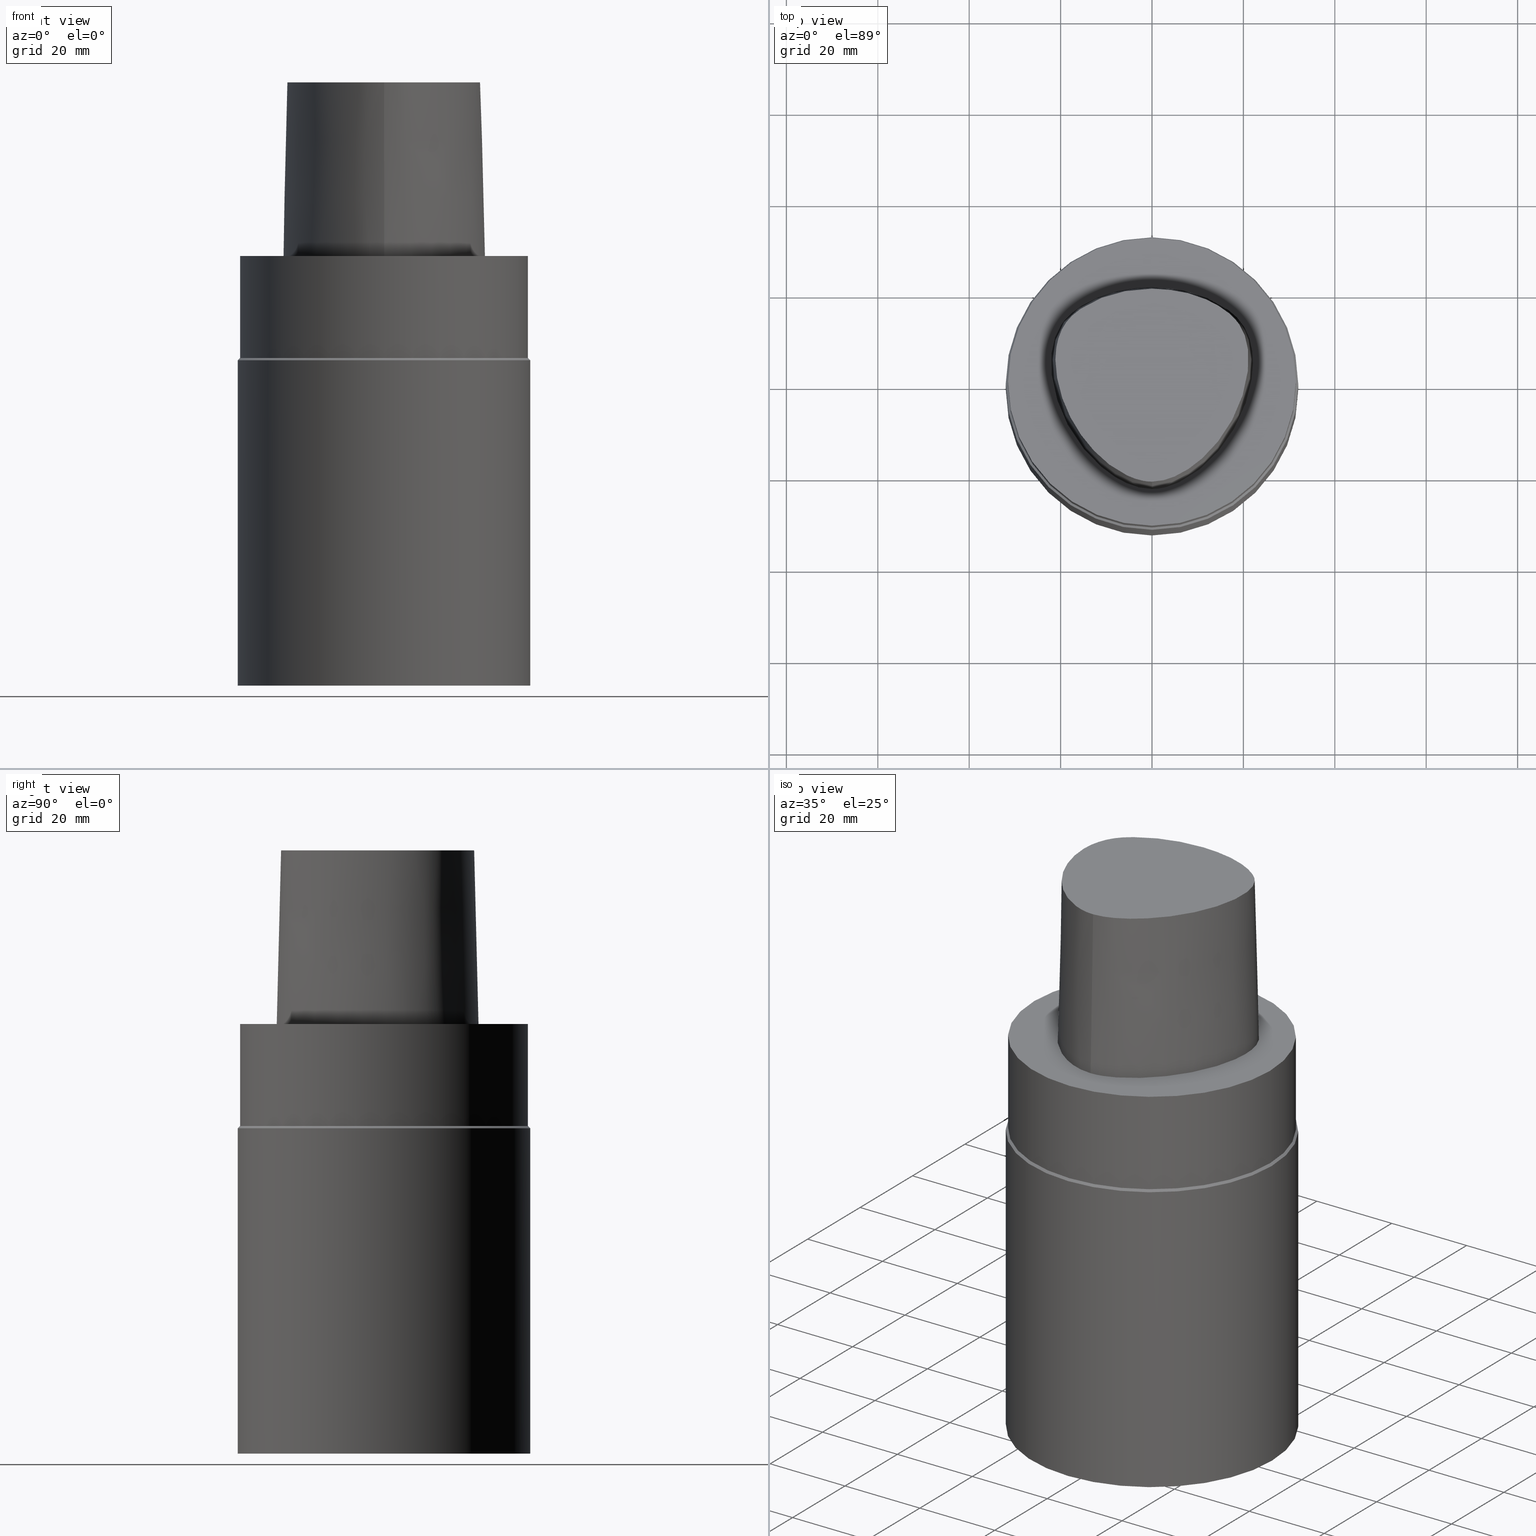
[diagram: canonical four-view strip — front | top / right | iso, engineering-drawing reading convention]
A machine part, canonical four-view strip (front | top / right | iso — engineering-drawing reading convention). The complete STEP part file that produces these views, byte-faithful:
ISO-10303-21;
HEADER;
FILE_DESCRIPTION((''),'1');
FILE_NAME('//Big_tech03/bigt/Translate/11_3D_Field/02_Step_Field/92_Capto_\X2\56DE8EE27528FF8EFF99FF80FF9E\X0\/CK/C6-CKB6-94.stp','2012-12-05T01:50:48',(''),(''),'Spatial Interop R18','Kubotek KeyCreator V8.5.1 (14335)',' ');
FILE_SCHEMA(('CONFIG_CONTROL_DESIGN'));
ENDSEC;
DATA;
#1=DESIGN_CONTEXT('',#27,'design');
#2=APPLICATION_PROTOCOL_DEFINITION('INTERNATIONAL STANDARD','config_control_design',1994,#27);
#3=PRODUCT_CATEGORY_RELATIONSHIP('NONE','NONE',#28,#29);
#4=DATE_AND_TIME(#30,#31);
#5=DATE_TIME_ROLE('creation_date');
#6=DATE_TIME_ROLE('classification_date');
#7=PERSON_AND_ORGANIZATION_ROLE('creator');
#8=PERSON_AND_ORGANIZATION_ROLE('design_supplier');
#9=PERSON_AND_ORGANIZATION_ROLE('classification_officer');
#10=PERSON_AND_ORGANIZATION_ROLE('design_owner');
#11=APPROVAL_PERSON_ORGANIZATION(#32,#33,#34);
#12=APPROVAL_DATE_TIME(#4,#33);
#13=CC_DESIGN_APPROVAL(#33,(#35,#36,#37));
#14=CC_DESIGN_DATE_AND_TIME_ASSIGNMENT(#4,#5,(#37));
#15=CC_DESIGN_DATE_AND_TIME_ASSIGNMENT(#4,#6,(#35));
#16=CC_DESIGN_PERSON_AND_ORGANIZATION_ASSIGNMENT(#32,#10,(#38));
#17=CC_DESIGN_PERSON_AND_ORGANIZATION_ASSIGNMENT(#32,#7,(#37));
#18=CC_DESIGN_PERSON_AND_ORGANIZATION_ASSIGNMENT(#32,#7,(#36));
#19=CC_DESIGN_PERSON_AND_ORGANIZATION_ASSIGNMENT(#32,#8,(#36));
#20=CC_DESIGN_SECURITY_CLASSIFICATION(#35,(#36));
#21=CC_DESIGN_PERSON_AND_ORGANIZATION_ASSIGNMENT(#32,#9,(#35));
#22=SHAPE_DEFINITION_REPRESENTATION(#39,#40);
#23= (GEOMETRIC_REPRESENTATION_CONTEXT(3)GLOBAL_UNCERTAINTY_ASSIGNED_CONTEXT((#43))GLOBAL_UNIT_ASSIGNED_CONTEXT((#45,#46,#47))REPRESENTATION_CONTEXT('NONE','WORKSPACE'));
#27=APPLICATION_CONTEXT('CONFIGURATION CONTROLLED 3D DESIGNS OF MECHANICAL PARTS AND ASSEMBLIES');
#28=PRODUCT_CATEGORY('part','NONE');
#29=PRODUCT_RELATED_PRODUCT_CATEGORY('detail',' ',(#38));
#30=CALENDAR_DATE(2012,5,11);
#31=LOCAL_TIME(10,50,48.0,#49);
#32=PERSON_AND_ORGANIZATION(#50,#51);
#33=APPROVAL(#52,'SOLID MODEL');
#34=APPROVAL_ROLE('APPROVED');
#35=SECURITY_CLASSIFICATION('','',#53);
#36=PRODUCT_DEFINITION_FORMATION_WITH_SPECIFIED_SOURCE(' ','NONE',#38,.NOT_KNOWN.);
#37=PRODUCT_DEFINITION('NONE','NONE',#36,#1);
#38=PRODUCT('1','1','PART-1-DESC',(#54));
#39=PRODUCT_DEFINITION_SHAPE('NONE','NONE',#37);
#40=ADVANCED_BREP_SHAPE_REPRESENTATION('1',(#55,#56),#23);
#43=UNCERTAINTY_MEASURE_WITH_UNIT(LENGTH_MEASURE(1.0E-006),#45,'','');
#45= (CONVERSION_BASED_UNIT('MILLIMETRE',#59)LENGTH_UNIT()NAMED_UNIT(#62));
#46= (NAMED_UNIT(#64)PLANE_ANGLE_UNIT()SI_UNIT($,.RADIAN.));
#47= (NAMED_UNIT(#64)SOLID_ANGLE_UNIT()SI_UNIT($,.STERADIAN.));
#49=COORDINATED_UNIVERSAL_TIME_OFFSET(9,0,.AHEAD.);
#50=PERSON('','UNSPECIFIED',$,$,$,$);
#51=ORGANIZATION('UNSPECIFIED','UNSPECIFIED','UNSPECIFIED');
#52=APPROVAL_STATUS('approved');
#53=SECURITY_CLASSIFICATION_LEVEL('unclassified');
#54=MECHANICAL_CONTEXT('',#27,'mechanical');
#55=MANIFOLD_SOLID_BREP('1',#70);
#56=AXIS2_PLACEMENT_3D('',#71,#72,#73);
#59=LENGTH_MEASURE_WITH_UNIT(LENGTH_MEASURE(1.0),#74);
#62=DIMENSIONAL_EXPONENTS(1.0,0.0,0.0,0.0,0.0,0.0,0.0);
#64=DIMENSIONAL_EXPONENTS(0.0,0.0,0.0,0.0,0.0,0.0,0.0);
#70=CLOSED_SHELL('',(#75,#76,#77,#78,#79,#80,#81,#82,#83));
#71=CARTESIAN_POINT('',(0.0,0.0,0.0));
#72=DIRECTION('',(0.0,0.0,1.0));
#73=DIRECTION('',(1.0,0.0,0.0));
#74= (NAMED_UNIT(#62)LENGTH_UNIT()SI_UNIT(.MILLI.,.METRE.));
#75=ADVANCED_FACE('',(#85),#86,.T.);
#76=ADVANCED_FACE('',(#87),#88,.T.);
#77=ADVANCED_FACE('',(#89),#90,.T.);
#78=ADVANCED_FACE('',(#91),#92,.T.);
#79=ADVANCED_FACE('',(#93,#94),#95,.T.);
#80=ADVANCED_FACE('',(#96,#97),#98,.T.);
#81=ADVANCED_FACE('',(#99),#100,.T.);
#82=ADVANCED_FACE('',(#101,#102),#103,.T.);
#83=ADVANCED_FACE('',(#104,#105),#106,.T.);
#85=FACE_OUTER_BOUND('',#107,.T.);
#86=B_SPLINE_SURFACE_WITH_KNOTS('',3,3,((#108,#109,#110,#111),(#112,#113,#114,#115),(#116,#117,#118,#119),(#120,#121,#122,#123),(#124,#125,#126,#127),(#128,#129,#130,#131),(#132,#133,#134,#135),(#136,#137,#138,#139),(#140,#141,#142,#143),(#144,#145,#146,#147),(#148,#149,#150,#151),(#152,#153,#154,#155),(#156,#157,#158,#159),(#160,#161,#162,#163),(#164,#165,#166,#167),(#168,#169,#170,#171),(#172,#173,#174,#175)),.UNSPECIFIED.,.F.,.F.,.F.,(4,1,1,1,1,1,1,1,1,1,1,1,1,1,4),(4,4),(-13.2302678617486,-12.816821991069,-12.4033761203893,-11.9899302497097,-11.57648437903,-11.1630385083504,-10.9563155730106,-10.7495926376707,-10.3361467669911,-9.92270089631145,-9.09580915495216,-8.26891741359287,-7.44202567223358,-7.02857980155394,-6.6151339308743),(-3.8,0.0),.UNSPECIFIED.);
#87=FACE_OUTER_BOUND('',#176,.T.);
#88=B_SPLINE_SURFACE_WITH_KNOTS('',3,3,((#177,#178,#179,#180),(#181,#182,#183,#184),(#185,#186,#187,#188),(#189,#190,#191,#192),(#193,#194,#195,#196),(#197,#198,#199,#200),(#201,#202,#203,#204),(#205,#206,#207,#208),(#209,#210,#211,#212),(#213,#214,#215,#216),(#217,#218,#219,#220),(#221,#222,#223,#224),(#225,#226,#227,#228),(#229,#230,#231,#232),(#233,#234,#235,#236),(#237,#238,#239,#240),(#241,#242,#243,#244),(#245,#246,#247,#248)),.UNSPECIFIED.,.F.,.F.,.F.,(4,1,1,1,1,1,1,1,1,2,1,1,1,1,4),(4,4),(-6.6151339308743,-6.20168806019465,-5.78824218951501,-5.37479631883537,-4.96135044815572,-4.13445870679644,-3.30756696543715,-2.89412109475751,-2.48067522407786,-2.06722935339822,-1.65378348271857,-1.24033761203893,-0.826891741359287,-0.413445870679644,0.0),(-3.8,0.0),.UNSPECIFIED.);
#89=FACE_OUTER_BOUND('',#249,.T.);
#90=CONICAL_SURFACE('',#250,1.0,0.0249931148600041);
#91=FACE_OUTER_BOUND('',#251,.T.);
#92=PLANE('',#252);
#93=FACE_BOUND('',#253,.T.);
#94=FACE_BOUND('',#254,.T.);
#95=CONICAL_SURFACE('',#255,31.74625,0.785398163397448);
#96=FACE_BOUND('',#256,.T.);
#97=FACE_BOUND('',#257,.T.);
#98=CYLINDRICAL_SURFACE('',#258,32.0);
#99=FACE_OUTER_BOUND('',#259,.T.);
#100=PLANE('',#260);
#101=FACE_BOUND('',#261,.T.);
#102=FACE_OUTER_BOUND('',#262,.T.);
#103=PLANE('',#263);
#104=FACE_BOUND('',#264,.T.);
#105=FACE_BOUND('',#265,.T.);
#106=CYLINDRICAL_SURFACE('',#266,31.4925);
#107=EDGE_LOOP('',(#267,#268,#269,#270));
#108=CARTESIAN_POINT('',(-0.001218367817519,19.7276822012873,38.0));
#109=CARTESIAN_POINT('',(0.014082083248157,20.0439577123075,25.3333333333066));
#110=CARTESIAN_POINT('',(0.029382534313671,20.3602332232908,12.6666666666934));
#111=CARTESIAN_POINT('',(0.044682985379347,20.6765087343109,1.61778115328528E-031));
#112=CARTESIAN_POINT('',(1.37788651195108,19.6609652834875,38.0));
#113=CARTESIAN_POINT('',(1.3931885827258,19.9772407169847,25.3333333333066));
#114=CARTESIAN_POINT('',(1.40849065356095,20.2935162254648,12.6666666666934));
#115=CARTESIAN_POINT('',(1.42379272427753,20.6097915814392,8.62816615085482E-032));
#116=CARTESIAN_POINT('',(4.135446440878,19.5347778787784,38.0));
#117=CARTESIAN_POINT('',(4.16466278851883,19.8511031866125,25.3333333333066));
#118=CARTESIAN_POINT('',(4.1938791526746,20.1674284644204,12.6666666666934));
#119=CARTESIAN_POINT('',(4.2230955003445,20.4837538303966,1.4791141972894E-031));
#120=CARTESIAN_POINT('',(8.213607363795,18.7706026638736,38.0));
#121=CARTESIAN_POINT('',(8.29980745008421,19.0767495109635,25.3333333333066));
#122=CARTESIAN_POINT('',(8.38600751285747,19.3828964329996,12.6666666666934));
#123=CARTESIAN_POINT('',(8.47220762821777,19.6890432607088,9.86076131526265E-032));
#124=CARTESIAN_POINT('',(12.1316338645671,17.3698624840857,38.0));
#125=CARTESIAN_POINT('',(12.2591308270381,17.6610739397708,25.3333333333066));
#126=CARTESIAN_POINT('',(12.3866278083543,17.9522853923553,12.6666666666934));
#127=CARTESIAN_POINT('',(12.5141247708253,18.2434968480404,0.0));
#128=CARTESIAN_POINT('',(15.7706546153679,15.3789501349612,38.0));
#129=CARTESIAN_POINT('',(15.9483905900895,15.6437731794811,25.3333333333066));
#130=CARTESIAN_POINT('',(16.1261265513272,15.9085961736944,12.6666666666934));
#131=CARTESIAN_POINT('',(16.3038624872874,16.1734192182143,1.97215226305253E-031));
#132=CARTESIAN_POINT('',(18.4265894256284,13.0570022172893,38.0));
#133=CARTESIAN_POINT('',(18.6659567517146,13.2725589420689,25.3333333333066));
#134=CARTESIAN_POINT('',(18.9053240921419,13.4881156488541,12.6666666666934));
#135=CARTESIAN_POINT('',(19.1446913988473,13.7036723639434,-1.97215226305253E-031));
#136=CARTESIAN_POINT('',(19.8679958653038,10.6923771981998,38.0));
#137=CARTESIAN_POINT('',(20.1559937048299,10.8287388264873,25.3333333333066));
#138=CARTESIAN_POINT('',(20.4439915656177,10.965100461641,12.6666666666934));
#139=CARTESIAN_POINT('',(20.7319894342149,11.1014620996188,0.0));
#140=CARTESIAN_POINT('',(20.8470867582337,8.07149548576131,38.0));
#141=CARTESIAN_POINT('',(21.1591164072431,8.14132775555392,25.3333333333066));
#142=CARTESIAN_POINT('',(21.4711459821861,8.21116003697855,12.6666666666934));
#143=CARTESIAN_POINT('',(21.7831756505763,8.28099229708081,-1.97215226305253E-031));
#144=CARTESIAN_POINT('',(21.2693244256982,4.61157245650171,38.0));
#145=CARTESIAN_POINT('',(21.5881576801997,4.6105997689982,25.3333333333066));
#146=CARTESIAN_POINT('',(21.9069908544037,4.60962709346857,12.6666666666934));
#147=CARTESIAN_POINT('',(22.2258240701438,4.60865440596506,0.0));
#148=CARTESIAN_POINT('',(20.8071610855575,-0.912828649855193,38.0));
#149=CARTESIAN_POINT('',(21.119311671178,-0.979640884839481,25.3333333333066));
#150=CARTESIAN_POINT('',(21.4314624224461,-1.04645306732201,12.6666666666934));
#151=CARTESIAN_POINT('',(21.7436130080666,-1.11326526354485,0.0));
#152=CARTESIAN_POINT('',(18.6841935581315,-7.54428794252837,38.0));
#153=CARTESIAN_POINT('',(18.9734452551861,-7.6809665891091,25.3333333333066));
#154=CARTESIAN_POINT('',(19.2626970689956,-7.81764505382656,12.6666666666934));
#155=CARTESIAN_POINT('',(19.5519487660502,-7.95432366164584,0.0));
#156=CARTESIAN_POINT('',(14.2175552814,-14.5971504342323,38.0));
#157=CARTESIAN_POINT('',(14.4641757465198,-14.8010930946929,25.3333333333066));
#158=CARTESIAN_POINT('',(14.710796247264,-15.0050359737917,12.6666666666934));
#159=CARTESIAN_POINT('',(14.9574167123838,-15.2089785567293,0.0));
#160=CARTESIAN_POINT('',(9.0844808732933,-19.3179298129689,38.0));
#161=CARTESIAN_POINT('',(9.27912152349017,-19.572866915557,25.3333333333066));
#162=CARTESIAN_POINT('',(9.47376218971294,-19.827804295621,12.6666666666934));
#163=CARTESIAN_POINT('',(9.66840283021945,-20.0827414369705,-9.86076131526265E-032));
#164=CARTESIAN_POINT('',(4.17112919194182,-21.8987568152736,38.0));
#165=CARTESIAN_POINT('',(4.28618163483998,-22.1973837173649,25.3333333333066));
#166=CARTESIAN_POINT('',(4.40123406239433,-22.4960105163661,12.6666666666934));
#167=CARTESIAN_POINT('',(4.51628650521788,-22.7946374572188,-9.86076131526265E-032));
#168=CARTESIAN_POINT('',(1.41533654381097,-22.5120888467812,38.0));
#169=CARTESIAN_POINT('',(1.46311520162011,-22.8284916374445,25.3333333333066));
#170=CARTESIAN_POINT('',(1.51089385942236,-23.144894486341,12.6666666666934));
#171=CARTESIAN_POINT('',(1.55867251738073,-23.4612972770043,-1.23259516440783E-032));
#172=CARTESIAN_POINT('',(0.038736923393866,-22.5191997536361,38.0));
#173=CARTESIAN_POINT('',(0.04035580478973,-22.8358410047159,25.3333333333066));
#174=CARTESIAN_POINT('',(0.041974686185626,-23.1524822558133,12.6666666666934));
#175=CARTESIAN_POINT('',(0.04359356758149,-23.4691235068931,7.78075697532443E-032));
#176=EDGE_LOOP('',(#271,#272,#273,#274));
#177=CARTESIAN_POINT('',(0.038736923393866,-22.5191997536361,38.0));
#178=CARTESIAN_POINT('',(0.04035580478973,-22.8358410047159,25.3333333333066));
#179=CARTESIAN_POINT('',(0.041974686185626,-23.1524822558133,12.6666666666934));
#180=CARTESIAN_POINT('',(0.04359356758149,-23.4691235068931,7.78075697532443E-032));
#181=CARTESIAN_POINT('',(-1.33786123484754,-22.5261650259856,38.0));
#182=CARTESIAN_POINT('',(-1.38240731367927,-22.8430399310626,25.3333333333066));
#183=CARTESIAN_POINT('',(-1.42695339249092,-23.1599147815484,12.6666666666934));
#184=CARTESIAN_POINT('',(-1.4714994713963,-23.4767895315797,2.46519032881566E-032));
#185=CARTESIAN_POINT('',(-4.08909358431842,-21.9268839879558,38.0));
#186=CARTESIAN_POINT('',(-4.20580731135515,-22.2249725500078,25.3333333333066));
#187=CARTESIAN_POINT('',(-4.32252104640446,-22.5230611651922,12.6666666666934));
#188=CARTESIAN_POINT('',(-4.43923476371401,-22.821149804767,-4.93038065763132E-032));
#189=CARTESIAN_POINT('',(-7.8333083619947,-19.9973514861616,38.0));
#190=CARTESIAN_POINT('',(-8.00568301809614,-20.2649260859405,25.3333333333066));
#191=CARTESIAN_POINT('',(-8.1780576640789,-20.532500564315,12.6666666666934));
#192=CARTESIAN_POINT('',(-8.35043230079961,-20.8000751253325,-9.86076131526265E-032));
#193=CARTESIAN_POINT('',(-11.1035071147626,-17.450554957873,38.0));
#194=CARTESIAN_POINT('',(-11.3173048160562,-17.6855739222454,25.3333333333066));
#195=CARTESIAN_POINT('',(-11.5311025116181,-17.9205928617968,12.6666666666934));
#196=CARTESIAN_POINT('',(-11.744900222602,-18.1556117874078,-1.97215226305253E-031));
#197=CARTESIAN_POINT('',(-14.9379535189057,-13.461132049697,38.0));
#198=CARTESIAN_POINT('',(-15.191622410671,-13.6542981711372,25.3333333333066));
#199=CARTESIAN_POINT('',(-15.4452913389853,-13.8474645327131,12.6666666666934));
#200=CARTESIAN_POINT('',(-15.6989602501314,-14.0406306929147,-1.97215226305253E-031));
#201=CARTESIAN_POINT('',(-18.6681263017223,-7.59391757463204,38.0));
#202=CARTESIAN_POINT('',(-18.9571800800711,-7.73136168081928,25.3333333333066));
#203=CARTESIAN_POINT('',(-19.2462337287194,-7.86880572399774,12.6666666666934));
#204=CARTESIAN_POINT('',(-19.5352875070682,-8.00624990770787,1.97215226305253E-031));
#205=CARTESIAN_POINT('',(-20.7857899858339,-0.952862819790525,38.0));
#206=CARTESIAN_POINT('',(-21.0973808305434,-1.02218087467418,25.3333333333066));
#207=CARTESIAN_POINT('',(-21.408971677436,-1.09149899580772,12.6666666666934));
#208=CARTESIAN_POINT('',(-21.7205626190491,-1.16081708945282,0.0));
#209=CARTESIAN_POINT('',(-21.2911760556836,4.5469215763113,38.0));
#210=CARTESIAN_POINT('',(-21.610337904926,4.54783292082248,25.3333333333066));
#211=CARTESIAN_POINT('',(-21.9294998290918,4.54874426225691,12.6666666666934));
#212=CARTESIAN_POINT('',(-22.2486616783342,4.54965558738736,0.0));
#213=CARTESIAN_POINT('',(-20.7345309521958,8.74909381391006,38.0));
#214=CARTESIAN_POINT('',(-21.0445680426217,8.83349432450556,25.3333333333066));
#215=CARTESIAN_POINT('',(-21.3546050933631,8.91789488065068,12.6666666666934));
#216=CARTESIAN_POINT('',(-21.6646421256468,9.00229539124618,0.0));
#217=CARTESIAN_POINT('',(-19.5531512296439,11.3174844040833,38.0));
#218=CARTESIAN_POINT('',(-19.8336219699984,11.4710077674213,25.3333333333066));
#219=CARTESIAN_POINT('',(-20.1140927680763,11.6245311337623,12.6666666666934));
#220=CARTESIAN_POINT('',(-20.3945635471922,11.7780544971003,0.0));
#221=CARTESIAN_POINT('',(-17.9100913688793,13.524027510437,38.0));
#222=CARTESIAN_POINT('',(-18.1375785458768,13.7487051053655,25.3333333333066));
#223=CARTESIAN_POINT('',(-18.365065665211,13.9733826973296,12.6666666666934));
#224=CARTESIAN_POINT('',(-18.5925528034471,14.1980602922581,0.0));
#225=CARTESIAN_POINT('',(-15.7996349656398,15.3762170634413,38.0));
#226=CARTESIAN_POINT('',(-15.9739761051783,15.6434029846179,25.3333333333066));
#227=CARTESIAN_POINT('',(-16.1483172726872,15.9105889315134,12.6666666666934));
#228=CARTESIAN_POINT('',(-16.3226584122258,16.1777748720707,0.0));
#229=CARTESIAN_POINT('',(-12.1175640002064,17.3825162484012,38.0));
#230=CARTESIAN_POINT('',(-12.2475895903055,17.6724842099619,25.3333333333066));
#231=CARTESIAN_POINT('',(-12.3776152070492,17.9624521925696,12.6666666666934));
#232=CARTESIAN_POINT('',(-12.5076407874579,18.2524201541303,9.86076131526265E-032));
#233=CARTESIAN_POINT('',(-8.21761151654222,18.7588585989994,38.0));
#234=CARTESIAN_POINT('',(-8.30099497910627,19.0656105427881,25.3333333333066));
#235=CARTESIAN_POINT('',(-8.38437843913309,19.3723624535439,12.6666666666934));
#236=CARTESIAN_POINT('',(-8.46776192107786,19.679114377952,9.86076131526265E-032));
#237=CARTESIAN_POINT('',(-4.13466093881225,19.5396850837055,38.0));
#238=CARTESIAN_POINT('',(-4.16658562115465,19.8557172636973,25.3333333333066));
#239=CARTESIAN_POINT('',(-4.19851029939059,20.1717494367229,12.6666666666934));
#240=CARTESIAN_POINT('',(-4.23043497193604,20.487781597334,1.97215226305253E-031));
#241=CARTESIAN_POINT('',(-1.37917220403684,19.6638560588908,38.0));
#242=CARTESIAN_POINT('',(-1.39382511685176,19.98016223565,25.3333333333066));
#243=CARTESIAN_POINT('',(-1.40847802945569,20.296468399885,12.6666666666934));
#244=CARTESIAN_POINT('',(-1.42313094248379,20.6127745766442,1.10933564796705E-031));
#245=CARTESIAN_POINT('',(-0.001218547003662,19.7276821925089,38.0));
#246=CARTESIAN_POINT('',(-0.015869696232855,20.043988446791,25.3333333333066));
#247=CARTESIAN_POINT('',(-0.030520845462092,20.3602947010464,12.6666666666934));
#248=CARTESIAN_POINT('',(-0.045171994691285,20.6766009553285,1.6755590516169E-031));
#249=EDGE_LOOP('',(#275,#276,#277));
#250=AXIS2_PLACEMENT_3D('',#278,#279,#280);
#251=EDGE_LOOP('',(#281,#282));
#252=AXIS2_PLACEMENT_3D('',#283,#284,#285);
#253=EDGE_LOOP('',(#286));
#254=EDGE_LOOP('',(#287));
#255=AXIS2_PLACEMENT_3D('',#288,#289,#290);
#256=EDGE_LOOP('',(#291));
#257=EDGE_LOOP('',(#292));
#258=AXIS2_PLACEMENT_3D('',#293,#294,#295);
#259=EDGE_LOOP('',(#296));
#260=AXIS2_PLACEMENT_3D('',#297,#298,#299);
#261=EDGE_LOOP('',(#300,#301,#302));
#262=EDGE_LOOP('',(#303));
#263=AXIS2_PLACEMENT_3D('',#304,#305,#306);
#264=EDGE_LOOP('',(#307));
#265=EDGE_LOOP('',(#308));
#266=AXIS2_PLACEMENT_3D('',#309,#310,#311);
#267=ORIENTED_EDGE('',*,*,#312,.F.);
#268=ORIENTED_EDGE('',*,*,#313,.F.);
#269=ORIENTED_EDGE('',*,*,#314,.F.);
#270=ORIENTED_EDGE('',*,*,#315,.T.);
#271=ORIENTED_EDGE('',*,*,#316,.F.);
#272=ORIENTED_EDGE('',*,*,#315,.F.);
#273=ORIENTED_EDGE('',*,*,#317,.F.);
#274=ORIENTED_EDGE('',*,*,#318,.T.);
#275=ORIENTED_EDGE('',*,*,#319,.F.);
#276=ORIENTED_EDGE('',*,*,#318,.F.);
#277=ORIENTED_EDGE('',*,*,#313,.T.);
#278=CARTESIAN_POINT('',(-0.001218547003662,19.7276821925089,-2.00268782779425));
#279=DIRECTION('',(2.1678647975542E-051,-3.42380273908985E-049,-1.0));
#280=DIRECTION('',(-0.046269895968506,0.99892897481606,-3.42113882891801E-049));
#281=ORIENTED_EDGE('',*,*,#317,.T.);
#282=ORIENTED_EDGE('',*,*,#314,.T.);
#283=CARTESIAN_POINT('',(0.008647668684817,1.77491953635526,38.0));
#284=DIRECTION('',(-0.0,2.95577857036584E-049,1.0));
#285=DIRECTION('',(1.0,0.0,0.0));
#286=ORIENTED_EDGE('',*,*,#320,.F.);
#287=ORIENTED_EDGE('',*,*,#321,.T.);
#288=CARTESIAN_POINT('',(1.38101888731348E-015,2.76203777462696E-015,-22.55375));
#289=DIRECTION('',(6.12323399573677E-017,1.22464679914735E-016,-1.0));
#290=DIRECTION('',(-1.23259516440783E-032,1.0,1.22464679914735E-016));
#291=ORIENTED_EDGE('',*,*,#322,.F.);
#292=ORIENTED_EDGE('',*,*,#320,.T.);
#293=CARTESIAN_POINT('',(3.57619827478511E-015,7.15239654957022E-015,-58.40375));
#294=DIRECTION('',(-6.12323399573677E-017,-1.22464679914735E-016,1.0));
#295=DIRECTION('',(-1.23259516440783E-032,1.0,1.22464679914735E-016));
#296=ORIENTED_EDGE('',*,*,#322,.T.);
#297=CARTESIAN_POINT('',(5.75583995599256E-015,16.0,-94.0));
#298=DIRECTION('',(6.12323399573677E-017,1.22464679914735E-016,-1.0));
#299=DIRECTION('',(-1.23259516440783E-032,1.0,1.22464679914735E-016));
#300=ORIENTED_EDGE('',*,*,#312,.T.);
#301=ORIENTED_EDGE('',*,*,#316,.T.);
#302=ORIENTED_EDGE('',*,*,#319,.T.);
#303=ORIENTED_EDGE('',*,*,#323,.F.);
#304=CARTESIAN_POINT('',(-1.94087516075568E-031,15.74625,1.9283594661074E-015));
#305=DIRECTION('',(-6.12323399573677E-017,-1.22464679914735E-016,1.0));
#306=DIRECTION('',(1.23259516440783E-032,-1.0,-1.22464679914735E-016));
#307=ORIENTED_EDGE('',*,*,#321,.F.);
#308=ORIENTED_EDGE('',*,*,#323,.T.);
#309=CARTESIAN_POINT('',(6.82740590524649E-016,1.3654811810493E-015,-11.15));
#310=DIRECTION('',(-6.12323399573677E-017,-1.22464679914735E-016,1.0));
#311=DIRECTION('',(-1.23259516440783E-032,1.0,1.22464679914735E-016));
#312=EDGE_CURVE('',#324,#325,#326,.T.);
#313=EDGE_CURVE('',#327,#324,#328,.T.);
#314=EDGE_CURVE('',#329,#327,#330,.T.);
#315=EDGE_CURVE('',#329,#325,#331,.T.);
#316=EDGE_CURVE('',#325,#332,#333,.T.);
#317=EDGE_CURVE('',#327,#329,#334,.T.);
#318=EDGE_CURVE('',#327,#332,#335,.T.);
#319=EDGE_CURVE('',#332,#324,#336,.T.);
#320=EDGE_CURVE('',#337,#337,#338,.T.);
#321=EDGE_CURVE('',#339,#339,#340,.T.);
#322=EDGE_CURVE('',#341,#341,#342,.T.);
#323=EDGE_CURVE('',#343,#343,#344,.T.);
#324=VERTEX_POINT('',#345);
#325=VERTEX_POINT('',#346);
#326=B_SPLINE_CURVE_WITH_KNOTS('',3,(#347,#348,#349,#350,#351,#352,#353,#354,#355,#356,#357,#358,#359,#360,#361,#362,#363),.UNSPECIFIED.,.F.,.F.,(4,1,1,1,1,1,1,1,1,1,1,1,1,1,4),(-13.2302678617486,-12.816821991069,-12.4033761203893,-11.9899302497097,-11.57648437903,-11.1630385083504,-10.9563155730106,-10.7495926376707,-10.3361467669911,-9.92270089631145,-9.09580915495216,-8.26891741359287,-7.44202567223358,-7.02857980155394,-6.6151339308743),.UNSPECIFIED.);
#327=VERTEX_POINT('',#364);
#328=LINE('',#365,#366);
#329=VERTEX_POINT('',#367);
#330=B_SPLINE_CURVE_WITH_KNOTS('',3,(#368,#369,#370,#371,#372,#373,#374,#375,#376,#377,#378,#379,#380,#381,#382,#383),.UNSPECIFIED.,.F.,.F.,(4,1,1,1,1,1,1,1,1,1,1,1,1,4),(6.61513393087476,6.99917207152274,7.48193246986995,7.96289324787093,8.45540287038584,9.10291653679981,9.67129810936083,10.1618749681153,10.6358867802489,11.1080734988593,11.6043706019633,12.09451993853,12.6985979284494,13.2302678617486),.UNSPECIFIED.);
#331=LINE('',#384,#385);
#332=VERTEX_POINT('',#386);
#333=B_SPLINE_CURVE_WITH_KNOTS('',3,(#387,#388,#389,#390,#391,#392,#393,#394,#395,#396,#397,#398,#399,#400,#401,#402,#403,#404),.UNSPECIFIED.,.F.,.F.,(4,1,1,1,1,1,1,1,1,2,1,1,1,1,4),(-6.6151339308743,-6.20168806019465,-5.78824218951501,-5.37479631883537,-4.96135044815572,-4.13445870679644,-3.30756696543715,-2.89412109475751,-2.48067522407786,-2.06722935339822,-1.65378348271857,-1.24033761203893,-0.826891741359287,-0.413445870679644,0.0),.UNSPECIFIED.);
#334=B_SPLINE_CURVE_WITH_KNOTS('',3,(#405,#406,#407,#408,#409,#410,#411,#412,#413,#414,#415,#416,#417,#418,#419,#420),.UNSPECIFIED.,.F.,.F.,(4,1,1,1,1,1,1,1,1,1,1,1,1,4),(0.0,0.447924670568964,0.9388024242536,1.50591409090711,2.07314340012323,2.72424957442464,3.2253501842849,3.80982102049476,4.34867996267067,4.85900173381144,5.37972031856977,6.03459825488646,6.61113557741484,6.61513393087395),.UNSPECIFIED.);
#335=LINE('',#421,#422);
#336=CIRCLE('',#423,0.949936168436318);
#337=VERTEX_POINT('',#424);
#338=CIRCLE('',#425,32.0);
#339=VERTEX_POINT('',#426);
#340=CIRCLE('',#427,31.4925);
#341=VERTEX_POINT('',#428);
#342=CIRCLE('',#429,32.0);
#343=VERTEX_POINT('',#430);
#344=CIRCLE('',#431,31.4925);
#345=CARTESIAN_POINT('',(0.044682985379347,20.6765087343109,1.61778115328528E-031));
#346=CARTESIAN_POINT('',(0.04359356758149,-23.4691235068931,7.78075697532443E-032));
#347=CARTESIAN_POINT('',(0.044682985379347,20.6765087343109,1.61778115328528E-031));
#348=CARTESIAN_POINT('',(1.42379272427753,20.6097915814392,8.62816615085482E-032));
#349=CARTESIAN_POINT('',(4.2230955003445,20.4837538303966,1.4791141972894E-031));
#350=CARTESIAN_POINT('',(8.47220762821777,19.6890432607088,9.86076131526265E-032));
#351=CARTESIAN_POINT('',(12.5141247708253,18.2434968480404,0.0));
#352=CARTESIAN_POINT('',(16.3038624872874,16.1734192182143,1.97215226305253E-031));
#353=CARTESIAN_POINT('',(19.1446913988473,13.7036723639434,-1.97215226305253E-031));
#354=CARTESIAN_POINT('',(20.7319894342149,11.1014620996188,0.0));
#355=CARTESIAN_POINT('',(21.7831756505763,8.28099229708081,-1.97215226305253E-031));
#356=CARTESIAN_POINT('',(22.2258240701438,4.60865440596506,0.0));
#357=CARTESIAN_POINT('',(21.7436130080666,-1.11326526354485,0.0));
#358=CARTESIAN_POINT('',(19.5519487660502,-7.95432366164584,0.0));
#359=CARTESIAN_POINT('',(14.9574167123838,-15.2089785567293,0.0));
#360=CARTESIAN_POINT('',(9.66840283021945,-20.0827414369705,-9.86076131526265E-032));
#361=CARTESIAN_POINT('',(4.51628650521788,-22.7946374572188,-9.86076131526265E-032));
#362=CARTESIAN_POINT('',(1.55867251738073,-23.4612972770043,-1.23259516440783E-032));
#363=CARTESIAN_POINT('',(0.04359356758149,-23.4691235068931,7.78075697532443E-032));
#364=CARTESIAN_POINT('',(-0.001218547003662,19.7276821925089,38.0));
#365=CARTESIAN_POINT('',(-0.001218547003662,19.7276821925089,38.0));
#366=VECTOR('',#432,38.0118715503078);
#367=CARTESIAN_POINT('',(0.038736923393866,-22.5191997536361,38.0));
#368=CARTESIAN_POINT('',(0.038736923394311,-22.519199753636,38.0));
#369=CARTESIAN_POINT('',(1.31742058183662,-22.512662269405,38.0));
#370=CARTESIAN_POINT('',(4.2093773447498,-21.9116226439989,38.0));
#371=CARTESIAN_POINT('',(8.20895504542113,-19.7798683845067,38.0));
#372=CARTESIAN_POINT('',(11.9784633234593,-16.681663904162,38.0));
#373=CARTESIAN_POINT('',(15.5308821579362,-12.5807487594113,38.0));
#374=CARTESIAN_POINT('',(18.4566248438667,-7.64932246015528,38.0));
#375=CARTESIAN_POINT('',(20.4036090752029,-2.27012499825289,38.0));
#376=CARTESIAN_POINT('',(21.2357187429189,2.79891401173156,38.0));
#377=CARTESIAN_POINT('',(21.0811206267748,7.62543090736657,38.0));
#378=CARTESIAN_POINT('',(19.3383577336563,12.2772250726194,38.0));
#379=CARTESIAN_POINT('',(15.5796322014404,15.5799672120682,38.0));
#380=CARTESIAN_POINT('',(10.8392956074438,17.9834601687347,38.0));
#381=CARTESIAN_POINT('',(5.56068045850571,19.4586143858472,38.0));
#382=CARTESIAN_POINT('',(1.77223893711014,19.6418877095654,38.0));
#383=CARTESIAN_POINT('',(-0.001218367817519,19.7276822012873,38.0));
#384=CARTESIAN_POINT('',(0.038736923393866,-22.5191997536361,38.0));
#385=VECTOR('',#433,38.0118715498723);
#386=CARTESIAN_POINT('',(-0.045171994691285,20.6766009553285,1.6755590516169E-031));
#387=CARTESIAN_POINT('',(0.04359356758149,-23.4691235068931,7.78075697532443E-032));
#388=CARTESIAN_POINT('',(-1.4714994713963,-23.4767895315797,2.46519032881566E-032));
#389=CARTESIAN_POINT('',(-4.43923476371401,-22.821149804767,-4.93038065763132E-032));
#390=CARTESIAN_POINT('',(-8.35043230079961,-20.8000751253325,-9.86076131526265E-032));
#391=CARTESIAN_POINT('',(-11.744900222602,-18.1556117874078,-1.97215226305253E-031));
#392=CARTESIAN_POINT('',(-15.6989602501314,-14.0406306929147,-1.97215226305253E-031));
#393=CARTESIAN_POINT('',(-19.5352875070682,-8.00624990770787,1.97215226305253E-031));
#394=CARTESIAN_POINT('',(-21.7205626190491,-1.16081708945282,0.0));
#395=CARTESIAN_POINT('',(-22.2486616783342,4.54965558738736,0.0));
#396=CARTESIAN_POINT('',(-21.6646421256468,9.00229539124618,0.0));
#397=CARTESIAN_POINT('',(-20.3945635471922,11.7780544971003,0.0));
#398=CARTESIAN_POINT('',(-18.5925528034471,14.1980602922581,0.0));
#399=CARTESIAN_POINT('',(-16.3226584122258,16.1777748720707,0.0));
#400=CARTESIAN_POINT('',(-12.5076407874579,18.2524201541303,9.86076131526265E-032));
#401=CARTESIAN_POINT('',(-8.46776192107786,19.679114377952,9.86076131526265E-032));
#402=CARTESIAN_POINT('',(-4.23043497193604,20.487781597334,1.97215226305253E-031));
#403=CARTESIAN_POINT('',(-1.42313094248379,20.6127745766442,1.10933564796705E-031));
#404=CARTESIAN_POINT('',(-0.045171994691285,20.6766009553285,1.6755590516169E-031));
#405=CARTESIAN_POINT('',(-0.001218547003662,19.7276821925089,38.0));
#406=CARTESIAN_POINT('',(-1.49408492138443,19.6585333605309,38.0));
#407=CARTESIAN_POINT('',(-4.62297391420352,19.513604770166,38.0));
#408=CARTESIAN_POINT('',(-9.56160616752212,18.4291575730197,38.0));
#409=CARTESIAN_POINT('',(-14.5427684976927,16.2697452580488,38.0));
#410=CARTESIAN_POINT('',(-19.4315563551602,12.5302108980807,38.0));
#411=CARTESIAN_POINT('',(-21.306358833612,6.76352894547076,38.0));
#412=CARTESIAN_POINT('',(-21.0724946936277,0.957075236984038,38.0));
#413=CARTESIAN_POINT('',(-19.7876470880144,-4.34628503581652,38.0));
#414=CARTESIAN_POINT('',(-17.5396999600095,-9.33314444653089,38.0));
#415=CARTESIAN_POINT('',(-14.645447733857,-13.7185760345629,38.0));
#416=CARTESIAN_POINT('',(-10.7996726536643,-17.856257282137,38.0));
#417=CARTESIAN_POINT('',(-6.00479510196376,-21.2687382067675,38.0));
#418=CARTESIAN_POINT('',(-1.90747171908525,-22.5250621415864,38.0));
#419=CARTESIAN_POINT('',(0.025424107066464,-22.5192678176378,38.0));
#420=CARTESIAN_POINT('',(0.038736923394311,-22.519199753636,38.0));
#421=CARTESIAN_POINT('',(-0.001218547003662,19.7276821925089,38.0));
#422=VECTOR('',#434,38.0118715498723);
#423=AXIS2_PLACEMENT_3D('',#435,#436,#437);
#424=CARTESIAN_POINT('',(1.39655659357766E-015,32.0,-22.8075));
#425=AXIS2_PLACEMENT_3D('',#438,#439,#440);
#426=CARTESIAN_POINT('',(1.3654811810493E-015,31.4925,-22.3));
#427=AXIS2_PLACEMENT_3D('',#441,#442,#443);
#428=CARTESIAN_POINT('',(5.75583995599256E-015,32.0,-94.0));
#429=AXIS2_PLACEMENT_3D('',#444,#445,#446);
#430=CARTESIAN_POINT('',(-3.88175032151136E-031,31.4925,3.8567189322148E-015));
#431=AXIS2_PLACEMENT_3D('',#447,#448,#449);
#432=DIRECTION('',(0.001207557810519,0.024961321374199,-0.999687688350411));
#433=DIRECTION('',(0.000127766510556,-0.024990186342461,-0.999687688361864));
#434=DIRECTION('',(-0.001156308434589,0.02496374748543,-0.999687688361864));
#435=CARTESIAN_POINT('',(-0.001218547003662,19.7276821925089,1.97178046083078E-015));
#436=DIRECTION('',(6.12323399573677E-017,1.22464679914735E-016,-1.0));
#437=DIRECTION('',(-0.046269895968506,0.998928974816059,1.19500303158668E-016));
#438=CARTESIAN_POINT('',(1.39655659357766E-015,2.79311318715533E-015,-22.8075));
#439=DIRECTION('',(6.12323399573677E-017,1.22464679914735E-016,-1.0));
#440=DIRECTION('',(-1.23259516440783E-032,1.0,1.22464679914735E-016));
#441=CARTESIAN_POINT('',(1.3654811810493E-015,2.7309623620986E-015,-22.3));
#442=DIRECTION('',(6.12323399573677E-017,1.22464679914735E-016,-1.0));
#443=DIRECTION('',(-1.23259516440783E-032,1.0,1.22464679914735E-016));
#444=CARTESIAN_POINT('',(5.75583995599256E-015,1.15116799119851E-014,-94.0));
#445=DIRECTION('',(6.12323399573677E-017,1.22464679914735E-016,-1.0));
#446=DIRECTION('',(-1.23259516440783E-032,1.0,1.22464679914735E-016));
#447=CARTESIAN_POINT('',(0.0,0.0,0.0));
#448=DIRECTION('',(6.12323399573677E-017,1.22464679914735E-016,-1.0));
#449=DIRECTION('',(-1.23259516440783E-032,1.0,1.22464679914735E-016));
ENDSEC;
END-ISO-10303-21;
